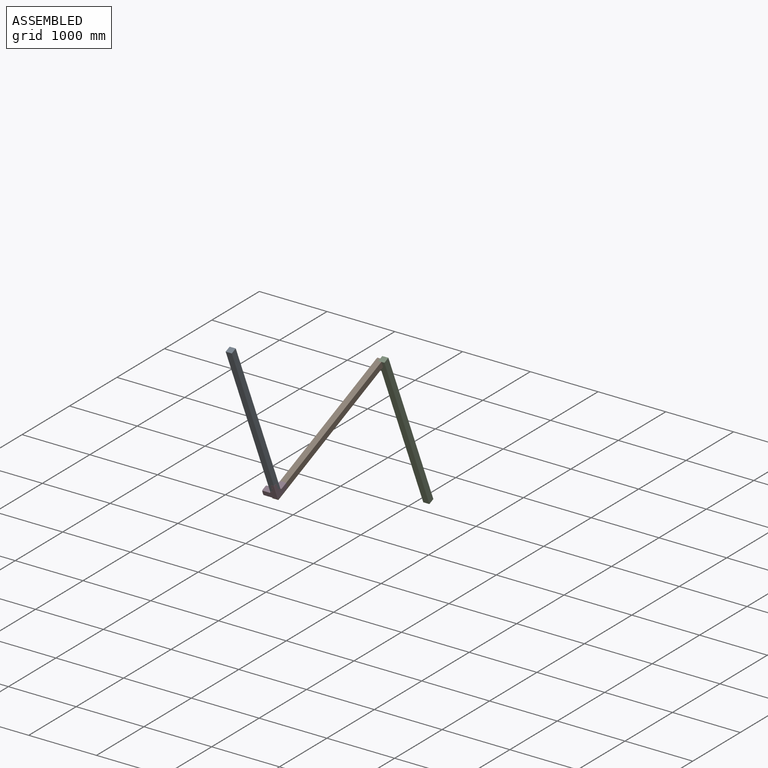
[diagram: assembled view]
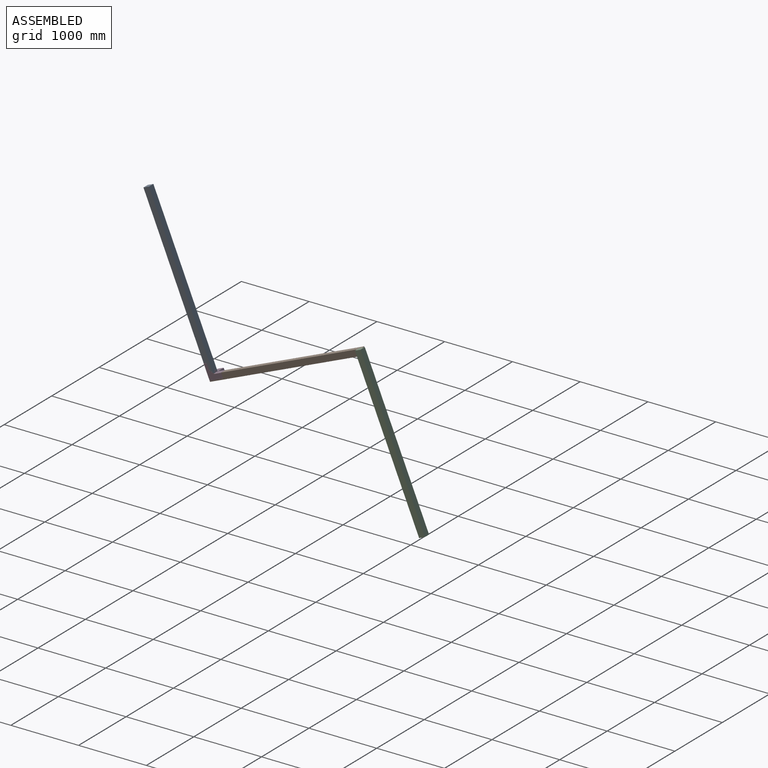
[diagram: assembled view, second angle]
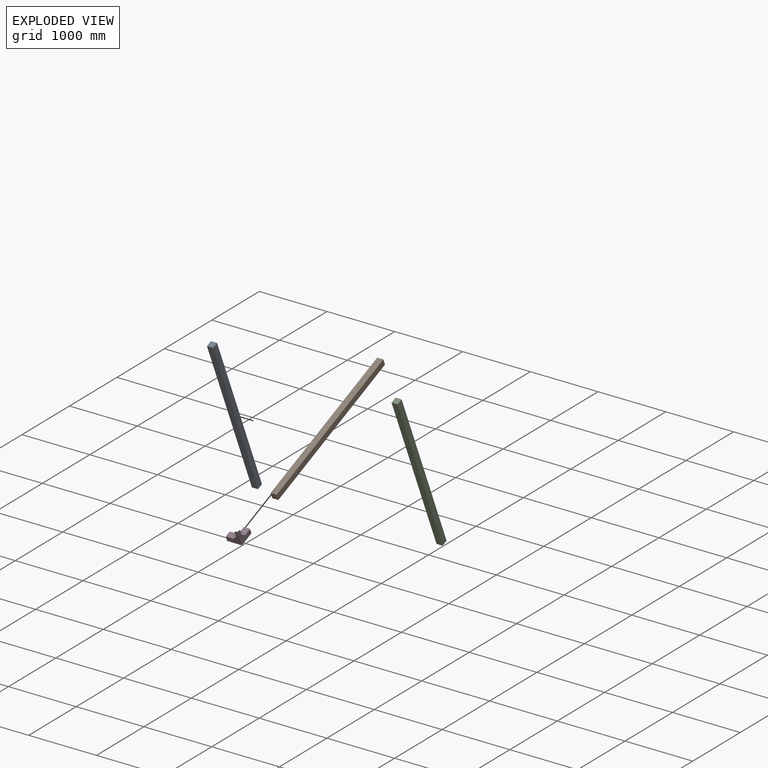
[diagram: exploded view]
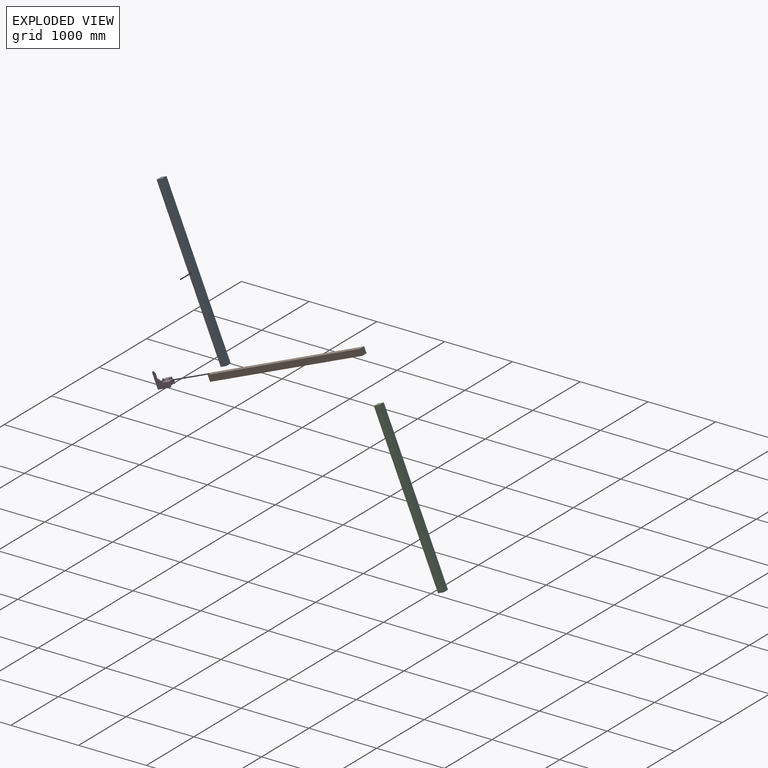
[diagram: exploded view, second angle]
ASSEMBLY  parts=4 mates=2
PART A: 6 faces, bbox 90.5x2438.4x90.5 mm
  f0: plane 2438.4x90.5mm, normal (0,0,-1), area 220675.7mm2, adj f1,f3,f4,f5
  f1: plane 2438.4x90.5mm, normal (1,0,0), area 220675.7mm2, adj f0,f2,f4,f5
  f2: plane 2438.4x90.5mm, normal (0,0,1), area 220675.7mm2, adj f1,f3,f4,f5
  f3: plane 2438.4x90.5mm, normal (-1,0,0), area 220675.7mm2, adj f0,f2,f4,f5
  f4: plane 90.5x90.5mm, normal (0,-1,0), area 8190.3mm2, adj f0,f1,f2,f3
  f5: plane 90.5x90.5mm, normal (0,1,0), area 8190.3mm2, adj f0,f1,f2,f3
PART B: same geometry as A
PART C: same geometry as A
PART D: 173 faces, bbox 217.9x217.9x228.6 mm
  f0: plane 6.35x6.35mm, normal (0,-0.71,-0.71), area 16.7mm2, adj f1,f2,f5,f115
  f1: plane 35.4x4.79mm, normal (0,0,-1), area 69mm2, adj f0,f2,f5,f11,f22,f72,f116,f117
  f2: plane 60.83x38.03mm, normal (-1,0,0), area 2216.2mm2, adj f0,f1,f3,f4,f32,f33,f35,f36
  f3: plane 6.35x6.35mm, normal (0,-0.71,0.71), area 16.7mm2, adj f2,f4,f5,f115
  f4: plane 116.16x35.4mm, normal (0,0,1), area 276.1mm2, adj f2,f3,f5,f9,f11,f22,f116,f117
  f5: plane 60.83x38.03mm, normal (1,0,0), area 2216.2mm2, adj f0,f1,f3,f4,f32,f33,f34,f36
  f6: plane 6.35x6.35mm, normal (0,-0.71,0.71), area 16.7mm2, adj f7,f8,f104,f161
  f7: plane 53.96x1.86mm, normal (0,-1,0), area 100.3mm2, adj f6,f8,f94,f104
  f8: plane 120.65x60.83mm, normal (-1,0,0), area 7107.2mm2, adj f6,f7,f30,f31,f42,f43,f44,f45
  f9: plane 6.35x6.35mm, normal (-0.71,0,0.71), area 16.7mm2, adj f4,f10,f11,f22
  f10: plane 53.96x1.86mm, normal (-1,0,0), area 100.3mm2, adj f9,f11,f22,f80
  f11: plane 118.79x60.83mm, normal (0,1,0), area 7133.4mm2, adj f1,f4,f9,f10,f18,f19,f20,f23
  f12: plane 6.35x6.35mm, normal (0,-0.71,0.71), area 16.7mm2, adj f13,f14,f146,f159
  f13: plane 60.33x1.86mm, normal (0,-1,0), area 112.2mm2, adj f12,f14,f88,f146
  f14: plane 228.6x214.04mm, normal (-1,0,0), area 24584.5mm2, adj f12,f13,f50,f51,f52,f53,f54,f55
  f15: plane 6.35x6.35mm, normal (-0.71,0,0.71), area 16.7mm2, adj f16,f17,f136,f159
  f16: plane 60.33x1.86mm, normal (-1,0,0), area 112.2mm2, adj f15,f17,f77,f136
  f17: plane 228.6x214.04mm, normal (0,1,0), area 24584.5mm2, adj f15,f16,f60,f61,f62,f63,f64,f65
  f18: plane 6.59x6.36mm, normal (0,0,1), area 14.5mm2, adj f11,f20,f21,f22,f26,f170,f171,f172
  f19: plane 6.59x6.36mm, normal (0,0,-1), area 14.5mm2, adj f11,f20,f21,f22,f25,f170,f171,f172
  f20: cylinder r=3.72mm len=4.49mm, axis (0,0,1), area 13.1mm2, adj f11,f18,f19,f170
  f21: cylinder r=1.86mm len=4.49mm, axis (0,0,1), area 6.6mm2, adj f18,f19,f22,f172
  f22: plane 118.79x60.83mm, normal (0,-1,0), area 7133.4mm2, adj f1,f4,f9,f10,f18,f19,f21,f23
  f23: cylinder r=2.27mm len=4.54mm, axis (0,1,0), area 13.3mm2, adj f11,f22,f24,f27
  f24: plane 7.46x1.86mm, normal (0,0,1), area 13.9mm2, adj f11,f22,f23,f25
  f25: plane 1.86x0.03mm, normal (-1,0,0), area 0mm2, adj f11,f19,f22,f24
  f26: plane 1.86x0.03mm, normal (-1,0,0), area 0mm2, adj f11,f18,f22,f27
  f27: plane 7.46x1.86mm, normal (0,0,-1), area 13.9mm2, adj f11,f22,f23,f26
  f28: cylinder r=2.17mm len=4.34mm, axis (0,-1,0), area 25.4mm2, adj f11,f22
  f29: cylinder r=2.17mm len=4.34mm, axis (0,-1,0), area 25.4mm2, adj f11,f22
  f30: cylinder r=2.17mm len=4.34mm, axis (-1,0,0), area 25.4mm2, adj f8,f104
  f31: cylinder r=2.17mm len=4.34mm, axis (-1,0,0), area 25.4mm2, adj f8,f104
  f32: plane 6.58x6.35mm, normal (0,0,-1), area 14.5mm2, adj f2,f5,f34,f35,f38,f167,f168,f169
  f33: plane 6.58x6.35mm, normal (0,0,1), area 14.5mm2, adj f2,f5,f34,f35,f37,f167,f168,f169
  f34: cylinder r=3.72mm len=4.49mm, axis (0,0,-1), area 13.1mm2, adj f5,f32,f33,f167
  f35: cylinder r=1.86mm len=4.49mm, axis (0,0,-1), area 6.6mm2, adj f2,f32,f33,f169
  f36: plane 7.44x1.86mm, normal (0,0,-1), area 13.8mm2, adj f2,f5,f37,f40
  f37: plane 1.86x0.03mm, normal (0,-1,0), area 0mm2, adj f2,f5,f33,f36
  f38: plane 1.86x0.03mm, normal (0,-1,0), area 0mm2, adj f2,f5,f32,f39
  f39: plane 7.44x1.86mm, normal (0,0,1), area 13.8mm2, adj f2,f5,f38,f40
  f40: cylinder r=2.27mm len=4.54mm, axis (1,0,0), area 13.3mm2, adj f2,f5,f36,f39
  f41: cylinder r=2.17mm len=4.34mm, axis (-1,0,0), area 25.4mm2, adj f2,f5
  f42: plane 17.46x1.86mm, normal (0,0,-1), area 32.5mm2, adj f8,f44,f45,f104
  f43: plane 17.46x1.86mm, normal (0,0,1), area 32.5mm2, adj f8,f44,f45,f104
  f44: cylinder r=2.17mm len=4.34mm, axis (1,0,0), area 12.7mm2, adj f8,f42,f43,f104
  f45: cylinder r=2.17mm len=4.34mm, axis (1,0,0), area 12.7mm2, adj f8,f42,f43,f104
  f46: plane 17.46x1.86mm, normal (0,0,-1), area 32.5mm2, adj f8,f48,f49,f104
  f47: plane 17.46x1.86mm, normal (0,0,1), area 32.5mm2, adj f8,f48,f49,f104
  f48: cylinder r=2.17mm len=4.34mm, axis (1,0,0), area 12.7mm2, adj f8,f46,f47,f104
  f49: cylinder r=2.17mm len=4.34mm, axis (1,0,0), area 12.7mm2, adj f8,f46,f47,f104
  f50: cylinder r=2.17mm len=4.34mm, axis (1,0,0), area 25.4mm2, adj f14,f146
  f51: cylinder r=2.17mm len=4.34mm, axis (1,0,0), area 25.4mm2, adj f14,f146
  f52: cylinder r=2.17mm len=4.34mm, axis (1,0,0), area 25.4mm2, adj f14,f146
  f53: cylinder r=2.17mm len=4.34mm, axis (1,0,0), area 25.4mm2, adj f14,f146
  f54: cylinder r=2.17mm len=4.34mm, axis (1,0,0), area 25.4mm2, adj f14,f146
  f55: cylinder r=2.17mm len=4.34mm, axis (1,0,0), area 25.4mm2, adj f14,f146
  f56: cylinder r=2.17mm len=4.34mm, axis (1,0,0), area 25.4mm2, adj f14,f146
  f57: cylinder r=2.17mm len=4.34mm, axis (1,0,0), area 25.4mm2, adj f14,f146
  f58: cylinder r=2.17mm len=4.34mm, axis (1,0,0), area 25.4mm2, adj f14,f146
  f59: cylinder r=2.17mm len=4.34mm, axis (1,0,0), area 25.4mm2, adj f14,f146
  f60: cylinder r=2.17mm len=4.34mm, axis (0,1,0), area 25.4mm2, adj f17,f136
  f61: cylinder r=2.17mm len=4.34mm, axis (0,1,0), area 25.4mm2, adj f17,f136
  f62: cylinder r=2.17mm len=4.34mm, axis (0,1,0), area 25.4mm2, adj f17,f136
  f63: cylinder r=2.17mm len=4.34mm, axis (0,1,0), area 25.4mm2, adj f17,f136
  f64: cylinder r=2.17mm len=4.34mm, axis (0,1,0), area 25.4mm2, adj f17,f136
  f65: cylinder r=2.17mm len=4.34mm, axis (0,1,0), area 25.4mm2, adj f17,f136
  f66: cylinder r=2.17mm len=4.34mm, axis (0,1,0), area 25.4mm2, adj f17,f136
  f67: cylinder r=2.17mm len=4.34mm, axis (0,1,0), area 25.4mm2, adj f17,f136
  f68: cylinder r=2.17mm len=4.34mm, axis (0,1,0), area 25.4mm2, adj f17,f136
  f69: cylinder r=2.17mm len=4.34mm, axis (0,1,0), area 25.4mm2, adj f17,f136
  f70: plane 15.53x2.6mm, normal (1,0,0), area 28.2mm2, adj f71,f72,f73,f74,f87,f132
  f71: plane 5.97x1.86mm, normal (0,-1,0), area 11.1mm2, adj f70,f87,f132,f162
  f72: bspline ~2.23x2.23mm, area 4.9mm2, adj f1,f70,f73,f74
  f73: cylinder r=3.72mm len=114.92mm, axis (-1,0,0), area 662.3mm2, adj f22,f70,f72,f82,f83,f87
  f74: cylinder r=1.86mm len=114.92mm, axis (-1,0,0), area 331.1mm2, adj f11,f70,f72,f82,f83,f132
  f75: plane 9.86x9.07mm, normal (-1,0,0), area 29.5mm2, adj f17,f76,f79,f86,f87,f132,f135,f136
  f76: cylinder r=1.52mm len=1.86mm, axis (0,1,0), area 4.5mm2, adj f17,f75,f77,f136
  f77: plane 1.86x1.65mm, normal (0,0,-1), area 3.1mm2, adj f16,f17,f76,f136
  f78: plane 1.86x1.65mm, normal (0,1,0), area 3.1mm2, adj f79,f87,f131,f132
  f79: cylinder r=1.52mm len=1.86mm, axis (0,0,-1), area 4.5mm2, adj f75,f78,f87,f132
  f80: plane 1.86x1.65mm, normal (0,0,-1), area 3.1mm2, adj f10,f11,f22,f81
  f81: cylinder r=1.52mm len=1.86mm, axis (0,-1,0), area 2.4mm2, adj f11,f22,f80,f83
  f82: plane 13.52x2.96mm, normal (-1,0,0), area 24.8mm2, adj f73,f74,f83,f84,f87,f132
  f83: bspline ~2.02x1.53mm, area 2.3mm2, adj f73,f74,f81,f82
  f84: cylinder r=1.52mm len=1.86mm, axis (0,0,-1), area 4.5mm2, adj f82,f85,f87,f132
  f85: plane 1.86x1.65mm, normal (0,-1,0), area 3.1mm2, adj f84,f87,f131,f132
  f86: cylinder r=3.72mm len=101.08mm, axis (-1,0,0), area 585.4mm2, adj f17,f75,f87,f133,f134
  f87: plane 122.24x86.77mm, normal (0,0,-1), area 10184.3mm2, adj f70,f71,f73,f75,f78,f79,f82,f84
  f88: plane 1.86x1.65mm, normal (0,0,-1), area 3.1mm2, adj f13,f14,f89,f146
  f89: cylinder r=1.52mm len=1.86mm, axis (1,0,0), area 4.5mm2, adj f14,f88,f90,f146
  f90: plane 9.86x9.07mm, normal (0,-1,0), area 29.5mm2, adj f14,f89,f91,f99,f100,f103,f141,f146
  f91: cylinder r=1.52mm len=1.86mm, axis (0,0,-1), area 4.5mm2, adj f90,f92,f100,f103
  f92: plane 1.86x1.65mm, normal (1,0,0), area 3.1mm2, adj f91,f100,f102,f103
  f93: cylinder r=1.52mm len=1.86mm, axis (-1,0,0), area 2.4mm2, adj f8,f94,f95,f104
  f94: plane 1.86x1.65mm, normal (0,0,-1), area 3.1mm2, adj f7,f8,f93,f104
  f95: bspline ~2.02x1.53mm, area 2.3mm2, adj f93,f96,f101,f138
  f96: plane 13.52x2.96mm, normal (0,-1,0), area 24.8mm2, adj f95,f98,f100,f101,f103,f138
  f97: plane 1.86x1.65mm, normal (-1,0,0), area 3.1mm2, adj f98,f100,f102,f103
  f98: cylinder r=1.52mm len=1.86mm, axis (0,0,-1), area 4.5mm2, adj f96,f97,f100,f103
  f99: cylinder r=1.86mm len=101.08mm, axis (0,1,0), area 291.9mm2, adj f14,f90,f103,f139,f140
  f100: plane 122.24x86.77mm, normal (0,0,-1), area 10240.8mm2, adj f90,f91,f92,f96,f97,f98,f101,f102
  f101: cylinder r=3.72mm len=117.85mm, axis (0,1,0), area 686.5mm2, adj f8,f95,f96,f100,f137
  f102: plane 68.25x1.86mm, normal (0,-1,0), area 126.9mm2, adj f92,f97,f100,f103
  f103: plane 122.24x86.77mm, normal (0,0,1), area 10240.8mm2, adj f90,f91,f92,f96,f97,f98,f99,f102
  f104: plane 120.65x60.83mm, normal (1,0,0), area 7107.2mm2, adj f6,f7,f30,f31,f42,f43,f44,f45
  f105: cylinder r=6.35mm len=12.7mm, axis (0,0,1), area 74.2mm2, adj f100,f103
  f106: cylinder r=6.35mm len=12.7mm, axis (0,0,1), area 74.2mm2, adj f87,f132
  f107: cylinder r=2.17mm len=4.34mm, axis (1,0,0), area 25.4mm2, adj f128,f129
  f108: plane 14.29x12.7mm, normal (0,0.75,-0.66), area 35.5mm2, adj f109,f125,f128,f129
  f109: plane 6.69x1.86mm, normal (0,0,-1), area 12.4mm2, adj f108,f110,f128,f129
  f110: plane 18.71x18.71mm, normal (0,-0.71,-0.71), area 49.2mm2, adj f109,f123,f128,f129
  f111: cylinder r=2.17mm len=4.34mm, axis (0,1,0), area 25.4mm2, adj f165,f166
  f112: plane 18.71x18.71mm, normal (-0.71,0,-0.71), area 49.2mm2, adj f113,f119,f165,f166
  f113: plane 6.69x1.86mm, normal (0,0,-1), area 12.4mm2, adj f112,f114,f165,f166
  f114: plane 14.29x12.7mm, normal (0.75,0,-0.66), area 35.5mm2, adj f113,f118,f165,f166
  f115: plane 48.13x1.86mm, normal (0,-1,0), area 89.5mm2, adj f0,f2,f3,f5
  f116: cylinder r=1.86mm len=60.83mm, axis (0,0,-1), area 177.7mm2, adj f1,f2,f4,f22
  f117: cylinder r=3.72mm len=60.83mm, axis (0,0,-1), area 355.3mm2, adj f1,f4,f5,f11
  f118: plane 16.64x2.16mm, normal (1,0,0), area 30.1mm2, adj f114,f120,f121,f122,f165,f166
  f119: plane 13.31x3.18mm, normal (-1,0,0), area 25.5mm2, adj f100,f103,f112,f121,f122,f142,f165,f166
  f120: bspline ~2.61x2.51mm, area 5mm2, adj f118,f121,f122,f143
  f121: cylinder r=3.11mm len=39.6mm, axis (-1,0,0), area 188.4mm2, adj f103,f118,f119,f120,f166
  f122: cylinder r=1.25mm len=39.6mm, axis (-1,0,0), area 75.9mm2, adj f100,f118,f119,f120,f165
  f123: plane 13.31x3.18mm, normal (0,-1,0), area 25.5mm2, adj f87,f110,f126,f127,f128,f129,f132,f162
  f124: bspline ~2.61x2.51mm, area 5mm2, adj f125,f126,f127,f130
  f125: plane 16.64x2.16mm, normal (0,1,0), area 30.1mm2, adj f108,f124,f126,f127,f128,f129
  f126: cylinder r=3.11mm len=39.6mm, axis (0,1,0), area 188.4mm2, adj f123,f124,f125,f129,f132
  f127: cylinder r=1.25mm len=39.6mm, axis (0,1,0), area 75.9mm2, adj f87,f123,f124,f125,f128
  f128: plane 38.1x28.91mm, normal (-1,0,0), area 820.9mm2, adj f107,f108,f109,f110,f123,f125,f127
  f129: plane 38.1x28.91mm, normal (1,0,0), area 820.9mm2, adj f107,f108,f109,f110,f123,f125,f126
  f130: cylinder r=1.52mm len=1.86mm, axis (0,0,-1), area 0mm2, adj f87,f124,f132,f163
  f131: plane 68.25x1.86mm, normal (-1,0,0), area 126.9mm2, adj f78,f85,f87,f132
  f132: plane 122.24x86.77mm, normal (0,0,1), area 10184.3mm2, adj f70,f71,f74,f75,f78,f79,f82,f84
  f133: bspline ~2.32x1.09mm, area 1.9mm2, adj f86,f134,f135,f164
  f134: bspline ~3.75x3.44mm, area 7.1mm2, adj f86,f133,f135,f157
  f135: cylinder r=1.86mm len=101.08mm, axis (-1,0,0), area 291.9mm2, adj f75,f132,f133,f134,f136
  f136: plane 228.6x214.04mm, normal (0,-1,0), area 24584.5mm2, adj f15,f16,f60,f61,f62,f63,f64,f65
  f137: plane 64.55x14.75mm, normal (0,1,0), area 141.8mm2, adj f8,f100,f101,f103,f104,f138,f142,f161
  f138: cylinder r=1.86mm len=117.85mm, axis (0,1,0), area 343.2mm2, adj f95,f96,f103,f104,f137
  f139: bspline ~3.75x3.44mm, area 7.1mm2, adj f99,f140,f141,f147
  f140: bspline ~2.32x1.09mm, area 1.9mm2, adj f99,f139,f141,f145
  f141: cylinder r=3.72mm len=101.08mm, axis (0,1,0), area 585.4mm2, adj f90,f100,f139,f140,f146
  f142: cylinder r=1.52mm len=1.86mm, axis (0,0,1), area 4.5mm2, adj f100,f103,f119,f137
  f143: cylinder r=1.52mm len=1.86mm, axis (0,0,1), area 0mm2, adj f100,f103,f120,f144
  f144: plane 16.6x1.86mm, normal (0,1,0), area 30.9mm2, adj f100,f103,f143,f145
  f145: plane 17.99x17.99mm, normal (0.71,0.71,0), area 47.3mm2, adj f100,f103,f140,f144
  f146: plane 228.6x214.04mm, normal (1,0,0), area 24584.5mm2, adj f12,f13,f50,f51,f52,f53,f54,f55
  f147: cylinder r=2.81mm len=4.58mm, axis (-1,0,0), area 10.3mm2, adj f14,f139,f146,f148
  f148: plane 52.62x52.62mm, normal (0,-0.71,-0.71), area 138.4mm2, adj f14,f146,f147,f149
  f149: cylinder r=22.23mm len=15.72mm, axis (-1,0,0), area 32.5mm2, adj f14,f146,f148,f150
  f150: plane 61.44x1.86mm, normal (0,-1,0), area 114.2mm2, adj f14,f146,f149,f151
  f151: cylinder r=25.4mm len=25.4mm, axis (-1,0,0), area 74.2mm2, adj f14,f146,f150,f152
  f152: plane 25.67x25.67mm, normal (0,0,-1), area 89.8mm2, adj f14,f17,f136,f146,f151,f153,f158,f160
  f153: cylinder r=25.4mm len=25.4mm, axis (0,1,0), area 74.2mm2, adj f17,f136,f152,f154
  f154: plane 61.44x1.86mm, normal (-1,0,0), area 114.2mm2, adj f17,f136,f153,f155
  f155: cylinder r=22.23mm len=15.72mm, axis (0,1,0), area 32.5mm2, adj f17,f136,f154,f156
  f156: plane 52.62x52.62mm, normal (-0.71,0,-0.71), area 138.4mm2, adj f17,f136,f155,f157
  f157: cylinder r=2.81mm len=4.58mm, axis (0,1,0), area 10.3mm2, adj f17,f134,f136,f156
  f158: cylinder r=3.72mm len=228.6mm, axis (0,0,1), area 1335.3mm2, adj f17,f146,f152,f159
  f159: plane 211.41x211.41mm, normal (0,0,1), area 780.5mm2, adj f12,f14,f15,f17,f136,f146,f158,f160
  f160: cylinder r=1.86mm len=228.6mm, axis (0,0,1), area 667.6mm2, adj f14,f136,f152,f159
  f161: plane 114.3x1.86mm, normal (0,0,1), area 212.5mm2, adj f6,f8,f104,f137
  f162: cylinder r=1.52mm len=1.86mm, axis (0,0,-1), area 0mm2, adj f71,f87,f123,f132
  f163: plane 16.6x1.86mm, normal (1,0,0), area 30.9mm2, adj f87,f130,f132,f164
  f164: plane 17.99x17.99mm, normal (0.71,0.71,0), area 47.3mm2, adj f87,f132,f133,f163
  f165: plane 38.1x28.91mm, normal (0,-1,0), area 820.9mm2, adj f111,f112,f113,f114,f118,f119,f122
  f166: plane 38.1x28.91mm, normal (0,1,0), area 820.9mm2, adj f111,f112,f113,f114,f118,f119,f121
  f167: plane 5.54x5.54mm, normal (0.71,-0.71,0), area 33mm2, adj f32,f33,f34,f168
  f168: cylinder r=2.25mm len=4.49mm, axis (0.71,-0.71,0), area 13.1mm2, adj f32,f33,f167,f169
  f169: plane 5.54x5.54mm, normal (-0.71,0.71,0), area 33mm2, adj f32,f33,f35,f168
  f170: plane 5.54x5.54mm, normal (-0.71,0.71,0), area 33mm2, adj f18,f19,f20,f171
  f171: cylinder r=2.25mm len=4.49mm, axis (-0.71,0.71,0), area 13.1mm2, adj f18,f19,f170,f172
  f172: plane 5.54x5.54mm, normal (0.71,-0.71,0), area 33mm2, adj f18,f19,f21,f171
PLACE A rot(axis=(0,0.83,-0.55),180deg) t=(0,-2222.59,-888.43)mm
PLACE B rot(axis=(1,0,0),22.9deg) t=(0,0,0)mm fixed
PLACE C rot(axis=(0,0.55,0.83),180deg) t=(45.25,-17.59,41.69)mm
PLACE D rot(axis=(-1,0,0),157.1deg) t=(44.45,-2079.85,-787.74)mm
MATE fastened D.f64 <-> B.f4  axis (0,0.92,0.39) through (-25.4,-2256.57,-924.31)mm
MATE planar C.f5 <-> B.f2  axis (0,-0.39,0.92) through (45.25,-17.59,41.69)mm
